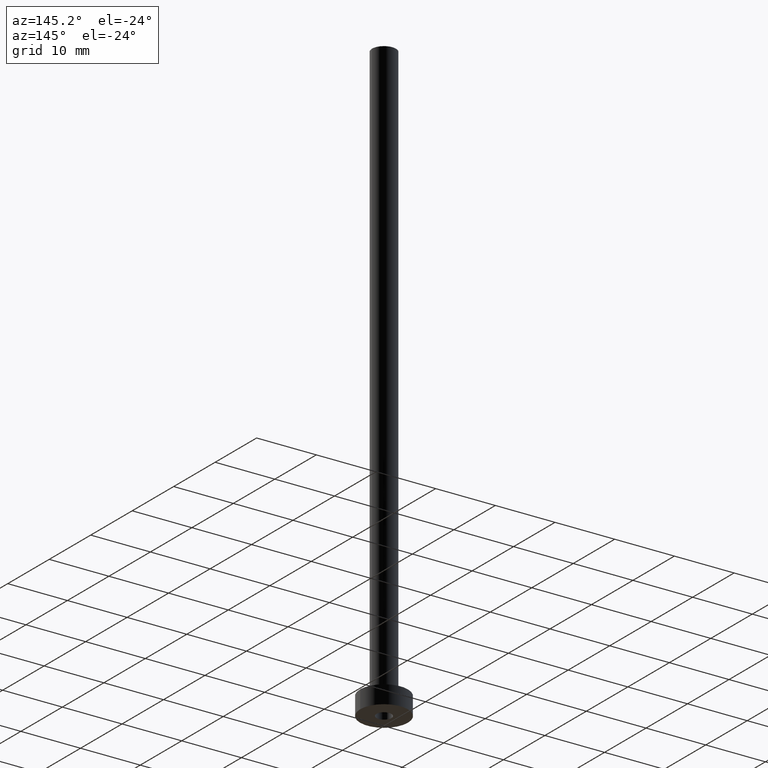
[diagram: clean part render]
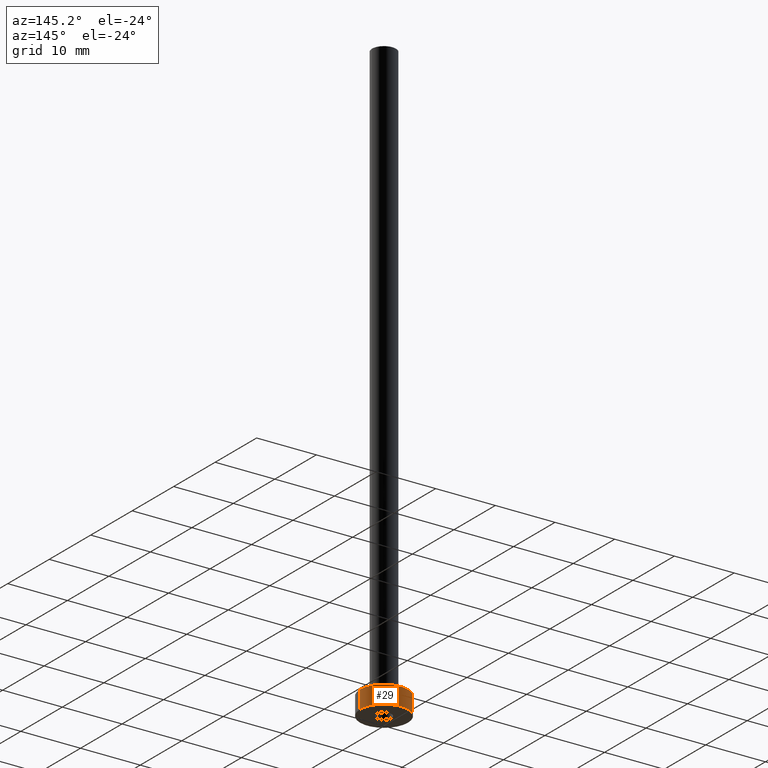
[diagram: same view with one face highlighted and labeled with its STEP entity id]
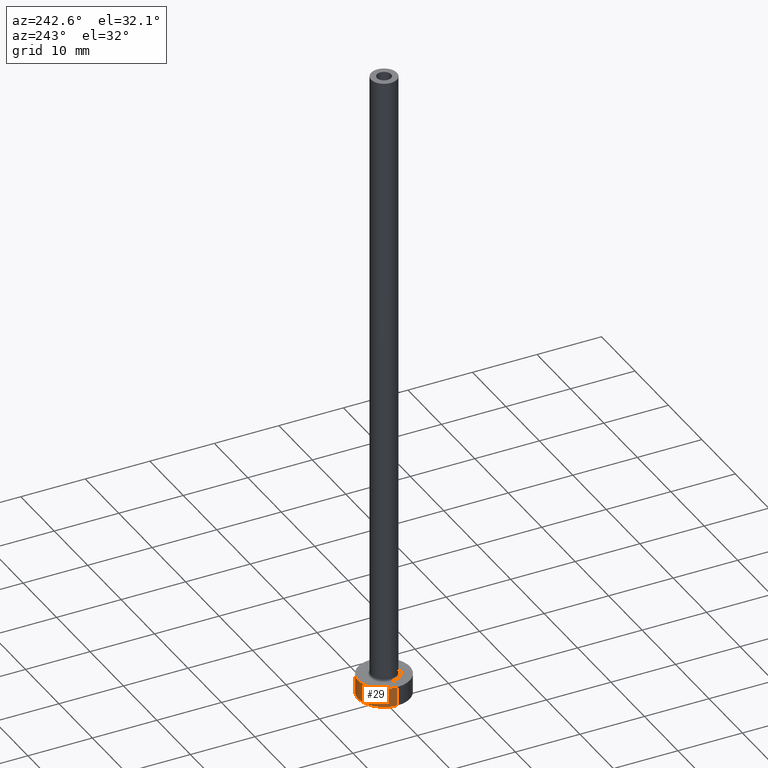
[diagram: same view with one face highlighted and labeled with its STEP entity id]
A machine part, auxiliary view. The second image highlights one B-rep face of the part: STEP entity #29.
A second angle (auxiliary view) of the same face is appended — the face is thin or edge-on in the first view.
In plain terms, the highlighted cylindrical surface (edge-blend (fillet) strip) has radius 4 mm, axis along (-0, -0, -1).
Its self-contained STEP definition (entity closure, byte-faithful):
#9 = CARTESIAN_POINT ( 'NONE',  ( 0.000000000000000000, 0.000000000000000000, 3.000000000000000000 ) ) ;
#13 = ORIENTED_EDGE ( 'NONE', *, *, #232, .F. ) ;
#16 = EDGE_CURVE ( 'NONE', #356, #66, #377, .T. ) ;
#18 = VECTOR ( 'NONE', #57, 1000.000000000000000 ) ;
#28 = CARTESIAN_POINT ( 'NONE',  ( -4.000000000000000000, 0.000000000000000000, 3.000000000000000000 ) ) ;
#29 = ADVANCED_FACE ( 'NONE', ( #221 ), #152, .T. ) ;
#51 = DIRECTION ( 'NONE',  ( 0.000000000000000000, 0.000000000000000000, 1.000000000000000000 ) ) ;
#52 = DIRECTION ( 'NONE',  ( -0.000000000000000000, -0.000000000000000000, -1.000000000000000000 ) ) ;
#53 = DIRECTION ( 'NONE',  ( -0.000000000000000000, -0.000000000000000000, -1.000000000000000000 ) ) ;
#57 = DIRECTION ( 'NONE',  ( -0.000000000000000000, -0.000000000000000000, -1.000000000000000000 ) ) ;
#66 = VERTEX_POINT ( 'NONE', #84 ) ;
#84 = CARTESIAN_POINT ( 'NONE',  ( 4.000000000000000000, 4.898587196589412829E-16, 0.000000000000000000 ) ) ;
#85 = CARTESIAN_POINT ( 'NONE',  ( 4.000000000000000000, 4.898587196589412829E-16, 3.000000000000000000 ) ) ;
#88 = AXIS2_PLACEMENT_3D ( 'NONE', #255, #51, #407 ) ;
#91 = LINE ( 'NONE', #28, #18 ) ;
#138 = EDGE_CURVE ( 'NONE', #356, #183, #420, .T. ) ;
#142 = AXIS2_PLACEMENT_3D ( 'NONE', #338, #161, #309 ) ;
#152 = CYLINDRICAL_SURFACE ( 'NONE', #375, 4.000000000000000000 ) ;
#161 = DIRECTION ( 'NONE',  ( 0.000000000000000000, 0.000000000000000000, 1.000000000000000000 ) ) ;
#173 = EDGE_LOOP ( 'NONE', ( #434, #367, #197, #13 ) ) ;
#183 = VERTEX_POINT ( 'NONE', #268 ) ;
#197 = ORIENTED_EDGE ( 'NONE', *, *, #261, .T. ) ;
#206 = VERTEX_POINT ( 'NONE', #447 ) ;
#213 = CARTESIAN_POINT ( 'NONE',  ( 4.000000000000000000, 4.898587196589412829E-16, 3.000000000000000000 ) ) ;
#221 = FACE_OUTER_BOUND ( 'NONE', #173, .T. ) ;
#232 = EDGE_CURVE ( 'NONE', #183, #206, #91, .T. ) ;
#255 = CARTESIAN_POINT ( 'NONE',  ( 0.000000000000000000, 0.000000000000000000, 3.000000000000000000 ) ) ;
#261 = EDGE_CURVE ( 'NONE', #66, #206, #352, .T. ) ;
#268 = CARTESIAN_POINT ( 'NONE',  ( -4.000000000000000000, 0.000000000000000000, 3.000000000000000000 ) ) ;
#309 = DIRECTION ( 'NONE',  ( 1.000000000000000000, 0.000000000000000000, 0.000000000000000000 ) ) ;
#335 = DIRECTION ( 'NONE',  ( -1.000000000000000000, 0.000000000000000000, 0.000000000000000000 ) ) ;
#338 = CARTESIAN_POINT ( 'NONE',  ( 0.000000000000000000, 0.000000000000000000, 0.000000000000000000 ) ) ;
#352 = CIRCLE ( 'NONE', #142, 4.000000000000000000 ) ;
#356 = VERTEX_POINT ( 'NONE', #213 ) ;
#367 = ORIENTED_EDGE ( 'NONE', *, *, #16, .T. ) ;
#375 = AXIS2_PLACEMENT_3D ( 'NONE', #9, #53, #335 ) ;
#377 = LINE ( 'NONE', #85, #416 ) ;
#407 = DIRECTION ( 'NONE',  ( 1.000000000000000000, 0.000000000000000000, 0.000000000000000000 ) ) ;
#416 = VECTOR ( 'NONE', #52, 1000.000000000000000 ) ;
#420 = CIRCLE ( 'NONE', #88, 4.000000000000000000 ) ;
#434 = ORIENTED_EDGE ( 'NONE', *, *, #138, .F. ) ;
#447 = CARTESIAN_POINT ( 'NONE',  ( -4.000000000000000000, 0.000000000000000000, 0.000000000000000000 ) ) ;